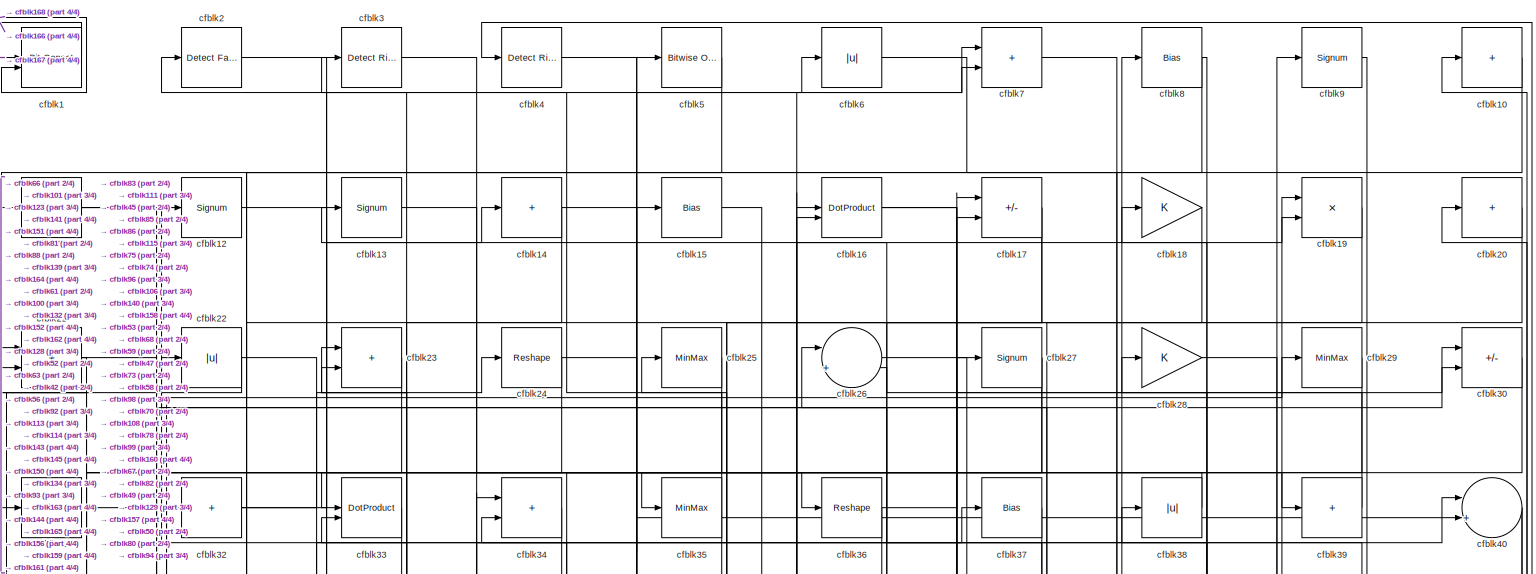
[diagram: root canvas - part 1/4, full width, top band]
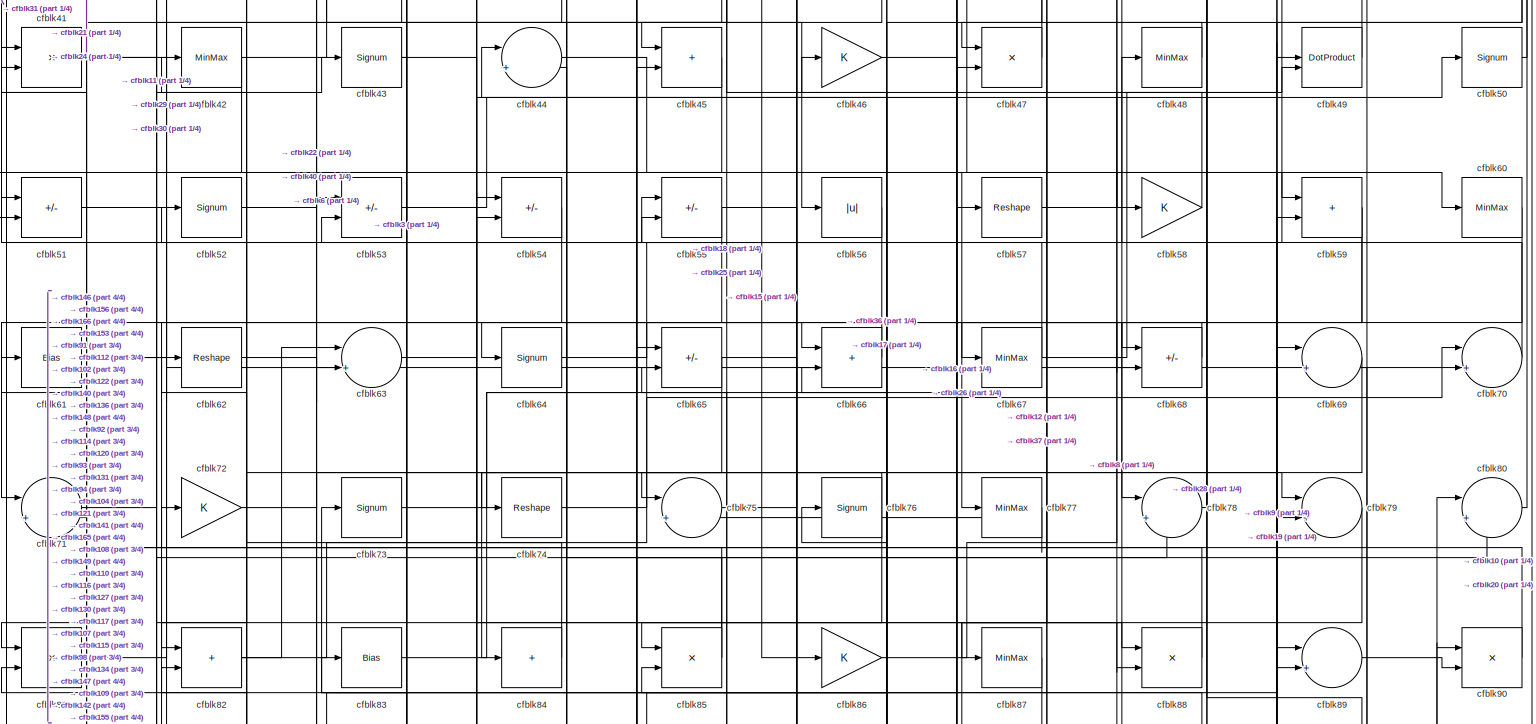
[diagram: root canvas - part 2/4, full width, middle band]
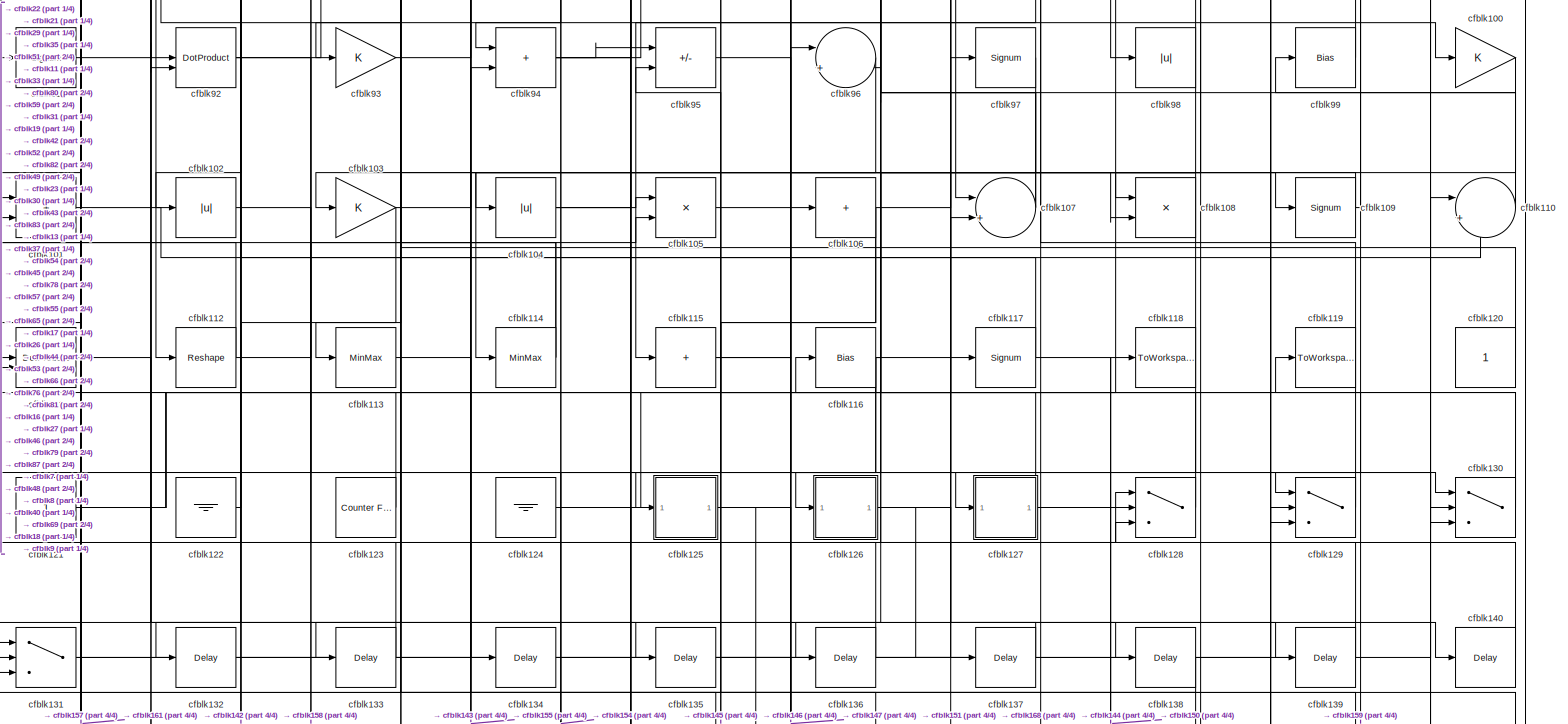
[diagram: root canvas - part 3/4, full width, bottom band]
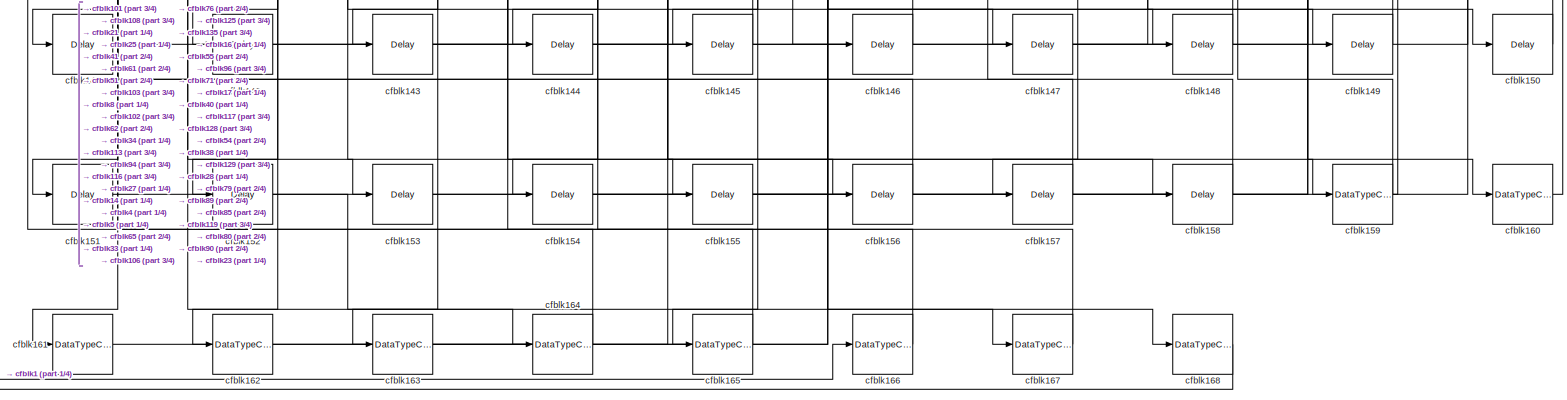
[diagram: root canvas - part 4/4, full width, bottom band]
MODEL slx_8624c88c60cd
KIND model
CONFIG AbsTol = auto
CONFIG EnableMultiTasking = off
CONFIG FixedStep = auto
CONFIG MaxStep = auto
CONFIG MinStep = auto
CONFIG RelTol = 1e-3
CONFIG SampleTimeConstraint = Unconstrained
CONFIG SolverName = VariableStepAuto
CONFIG StartTime = 0.0
CONFIG StopTime = 10.0
BLOCK [Reference] cfblk1  REF=hdlsllib/Logic and Bit
Operations/Bit Concat
  SourceBlock = hdlsllib/Logic and Bit\nOperations/Bit Concat
  SourceType = Bit Concat
BLOCK [Sum] cfblk10
  IconShape = rectangular
  Inputs = +
BLOCK [Gain] cfblk100
BLOCK [Sum] cfblk101
  IconShape = rectangular
BLOCK [Abs] cfblk102
  SaturateOnIntegerOverflow = off
BLOCK [Gain] cfblk103
BLOCK [Abs] cfblk104
  SaturateOnIntegerOverflow = off
BLOCK [Product] cfblk105
  Inputs = */
  RndMeth = Zero
  SaturateOnIntegerOverflow = on
BLOCK [Sum] cfblk106
  IconShape = rectangular
  Inputs = +
BLOCK [Sum] cfblk107
  Inputs = |++
BLOCK [Product] cfblk108
  Inputs = */
  RndMeth = Zero
  SaturateOnIntegerOverflow = on
BLOCK [Signum] cfblk109
BLOCK [MinMax] cfblk11
BLOCK [Sum] cfblk110
  Inputs = |++
BLOCK [DotProduct] cfblk111
  OutDataTypeStr = Inherit: Inherit via internal rule
BLOCK [Reshape] cfblk112
BLOCK [MinMax] cfblk113
BLOCK [MinMax] cfblk114
BLOCK [Sum] cfblk115
  IconShape = rectangular
  Inputs = +
BLOCK [Bias] cfblk116
  Bias = 0.0
  SaturateOnIntegerOverflow = off
BLOCK [Signum] cfblk117
BLOCK [ToWorkspace] cfblk118
  MaxDataPoints = inf
  SampleTime = -1
  SaveFormat = Timeseries
  VariableName = simout
BLOCK [ToWorkspace] cfblk119
  MaxDataPoints = inf
  SampleTime = -1
  SaveFormat = Timeseries
  VariableName = simout
BLOCK [Signum] cfblk12
BLOCK [Constant] cfblk120
  SampleTime = -1
BLOCK [Constant] cfblk121
  SampleTime = -1
BLOCK [Ground] cfblk122
BLOCK [Reference] cfblk123  REF=hdlsllib/Sources/Counter
Free-Running
  SourceBlock = hdlsllib/Sources/Counter\nFree-Running
  SourceType = Counter Free-Running
BLOCK [Ground] cfblk124
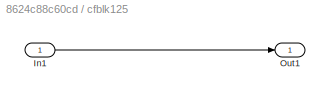
BLOCK [SubSystem] cfblk125
  LibrarySourceBlock = hdlsllib/Ports &\nSubsystems/Subsystem
BLOCK [Inport] cfblk125/In1
BLOCK [Outport] cfblk125/Out1
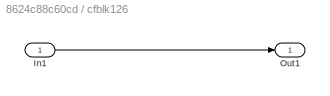
BLOCK [SubSystem] cfblk126
  LibrarySourceBlock = hdlsllib/Ports &\nSubsystems/Subsystem
BLOCK [Inport] cfblk126/In1
BLOCK [Outport] cfblk126/Out1
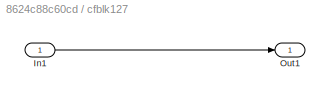
BLOCK [SubSystem] cfblk127
  LibrarySourceBlock = hdlsllib/Ports &\nSubsystems/Subsystem
BLOCK [Inport] cfblk127/In1
BLOCK [Outport] cfblk127/Out1
BLOCK [Switch] cfblk128
  InputSameDT = off
  SaturateOnIntegerOverflow = off
BLOCK [Switch] cfblk129
  InputSameDT = off
  SaturateOnIntegerOverflow = off
BLOCK [Signum] cfblk13
BLOCK [Switch] cfblk130
  InputSameDT = off
  SaturateOnIntegerOverflow = off
BLOCK [Switch] cfblk131
  InputSameDT = off
  SaturateOnIntegerOverflow = off
BLOCK [Delay] cfblk132
  InputPortMap = u0
  SampleTime = 1
BLOCK [Delay] cfblk133
  InputPortMap = u0
  SampleTime = 1
BLOCK [Delay] cfblk134
  InputPortMap = u0
  SampleTime = 1
BLOCK [Delay] cfblk135
  InputPortMap = u0
  SampleTime = 1
BLOCK [Delay] cfblk136
  InputPortMap = u0
  SampleTime = 1
BLOCK [Delay] cfblk137
  InputPortMap = u0
  SampleTime = 1
BLOCK [Delay] cfblk138
  InputPortMap = u0
  SampleTime = 1
BLOCK [Delay] cfblk139
  InputPortMap = u0
  SampleTime = 1
BLOCK [Sum] cfblk14
  IconShape = rectangular
  Inputs = +
BLOCK [Delay] cfblk140
  InputPortMap = u0
  SampleTime = 1
BLOCK [Delay] cfblk141
  InputPortMap = u0
  SampleTime = 1
BLOCK [Delay] cfblk142
  InputPortMap = u0
  SampleTime = 1
BLOCK [Delay] cfblk143
  InputPortMap = u0
  SampleTime = 1
BLOCK [Delay] cfblk144
  InputPortMap = u0
  SampleTime = 1
BLOCK [Delay] cfblk145
  InputPortMap = u0
  SampleTime = 1
BLOCK [Delay] cfblk146
  InputPortMap = u0
  SampleTime = 1
BLOCK [Delay] cfblk147
  InputPortMap = u0
  SampleTime = 1
BLOCK [Delay] cfblk148
  InputPortMap = u0
  SampleTime = 1
BLOCK [Delay] cfblk149
  InputPortMap = u0
  SampleTime = 1
BLOCK [Bias] cfblk15
  Bias = 0.0
  SaturateOnIntegerOverflow = off
BLOCK [Delay] cfblk150
  InputPortMap = u0
  SampleTime = 1
BLOCK [Delay] cfblk151
  InputPortMap = u0
  SampleTime = 1
BLOCK [Delay] cfblk152
  InputPortMap = u0
  SampleTime = 1
BLOCK [Delay] cfblk153
  InputPortMap = u0
  SampleTime = 1
BLOCK [Delay] cfblk154
  InputPortMap = u0
  SampleTime = 1
BLOCK [Delay] cfblk155
  InputPortMap = u0
  SampleTime = 1
BLOCK [Delay] cfblk156
  InputPortMap = u0
  SampleTime = 1
BLOCK [Delay] cfblk157
  InputPortMap = u0
  SampleTime = 1
BLOCK [Delay] cfblk158
  InputPortMap = u0
  SampleTime = 1
BLOCK [DataTypeConversion] cfblk159
  RndMeth = Floor
  SaturateOnIntegerOverflow = off
BLOCK [DotProduct] cfblk16
  OutDataTypeStr = Inherit: Inherit via internal rule
BLOCK [DataTypeConversion] cfblk160
  OutDataTypeStr = uint8
  RndMeth = Floor
  SaturateOnIntegerOverflow = off
BLOCK [DataTypeConversion] cfblk161
  OutDataTypeStr = boolean
  RndMeth = Floor
  SaturateOnIntegerOverflow = off
BLOCK [DataTypeConversion] cfblk162
  OutDataTypeStr = uint8
  RndMeth = Floor
  SaturateOnIntegerOverflow = off
BLOCK [DataTypeConversion] cfblk163
  OutDataTypeStr = uint8
  RndMeth = Floor
  SaturateOnIntegerOverflow = off
BLOCK [DataTypeConversion] cfblk164
  OutDataTypeStr = uint8
  RndMeth = Floor
  SaturateOnIntegerOverflow = off
BLOCK [DataTypeConversion] cfblk165
  OutDataTypeStr = uint8
  RndMeth = Floor
  SaturateOnIntegerOverflow = off
BLOCK [DataTypeConversion] cfblk166
  OutDataTypeStr = uint8
  RndMeth = Floor
  SaturateOnIntegerOverflow = off
BLOCK [DataTypeConversion] cfblk167
  OutDataTypeStr = uint8
  RndMeth = Floor
  SaturateOnIntegerOverflow = off
BLOCK [DataTypeConversion] cfblk168
  OutDataTypeStr = uint8
  RndMeth = Floor
  SaturateOnIntegerOverflow = off
BLOCK [Sum] cfblk17
  IconShape = rectangular
  Inputs = +-
BLOCK [Gain] cfblk18
BLOCK [Product] cfblk19
  Inputs = */
  RndMeth = Zero
  SaturateOnIntegerOverflow = on
BLOCK [Reference] cfblk2  REF=hdlsllib/Logic and Bit
Operations/Detect Fall
Nonpositive
  SourceBlock = hdlsllib/Logic and Bit\nOperations/Detect Fall\nNonpositive
  SourceType = Detect Fall Nonpositive
BLOCK [Sum] cfblk20
  IconShape = rectangular
  Inputs = +
BLOCK [Sum] cfblk21
  IconShape = rectangular
BLOCK [Abs] cfblk22
  SaturateOnIntegerOverflow = off
BLOCK [Sum] cfblk23
  IconShape = rectangular
BLOCK [Reshape] cfblk24
BLOCK [MinMax] cfblk25
BLOCK [Sum] cfblk26
  Inputs = |++
BLOCK [Signum] cfblk27
BLOCK [Gain] cfblk28
BLOCK [MinMax] cfblk29
BLOCK [Reference] cfblk3  REF=hdlsllib/Logic and Bit
Operations/Detect Rise
Positive
  SourceBlock = hdlsllib/Logic and Bit\nOperations/Detect Rise\nPositive
  SourceType = Detect Rise Positive
BLOCK [Sum] cfblk30
  IconShape = rectangular
  Inputs = +-
BLOCK [Bias] cfblk31
  Bias = 0.0
  SaturateOnIntegerOverflow = off
BLOCK [Sum] cfblk32
  IconShape = rectangular
  Inputs = +
BLOCK [DotProduct] cfblk33
  OutDataTypeStr = Inherit: Inherit via internal rule
BLOCK [Sum] cfblk34
  IconShape = rectangular
BLOCK [MinMax] cfblk35
BLOCK [Reshape] cfblk36
BLOCK [Bias] cfblk37
  Bias = 0.0
  SaturateOnIntegerOverflow = off
BLOCK [Abs] cfblk38
  SaturateOnIntegerOverflow = off
BLOCK [Sum] cfblk39
  IconShape = rectangular
  Inputs = +
BLOCK [Reference] cfblk4  REF=hdlsllib/Logic and Bit
Operations/Detect Rise
Positive
  SourceBlock = hdlsllib/Logic and Bit\nOperations/Detect Rise\nPositive
  SourceType = Detect Rise Positive
BLOCK [Sum] cfblk40
  Inputs = |++
BLOCK [Product] cfblk41
  Inputs = */
  RndMeth = Zero
  SaturateOnIntegerOverflow = on
BLOCK [MinMax] cfblk42
BLOCK [Signum] cfblk43
BLOCK [Sum] cfblk44
  Inputs = |++
BLOCK [Sum] cfblk45
  IconShape = rectangular
BLOCK [Gain] cfblk46
BLOCK [Product] cfblk47
  Inputs = */
  RndMeth = Zero
  SaturateOnIntegerOverflow = on
BLOCK [MinMax] cfblk48
BLOCK [DotProduct] cfblk49
  OutDataTypeStr = Inherit: Inherit via internal rule
BLOCK [Reference] cfblk5  REF=simulink/Logic and Bit
Operations/Bitwise
Operator
  LibrarySourceBlock = hdlsllib/Logic and Bit\nOperations/Bitwise\nOperator
  SourceBlock = simulink/Logic and Bit\nOperations/Bitwise\nOperator
  SourceType = Bitwise Operator
BLOCK [Signum] cfblk50
BLOCK [Sum] cfblk51
  IconShape = rectangular
  Inputs = +-
BLOCK [Signum] cfblk52
BLOCK [Sum] cfblk53
  IconShape = rectangular
  Inputs = +-
BLOCK [Sum] cfblk54
  IconShape = rectangular
  Inputs = +-
BLOCK [Sum] cfblk55
  IconShape = rectangular
  Inputs = +-
BLOCK [Abs] cfblk56
  SaturateOnIntegerOverflow = off
BLOCK [Reshape] cfblk57
BLOCK [Gain] cfblk58
BLOCK [Sum] cfblk59
  IconShape = rectangular
BLOCK [Abs] cfblk6
  SaturateOnIntegerOverflow = off
BLOCK [MinMax] cfblk60
BLOCK [Bias] cfblk61
  Bias = 0.0
  SaturateOnIntegerOverflow = off
BLOCK [Reshape] cfblk62
BLOCK [Sum] cfblk63
  Inputs = |++
BLOCK [Signum] cfblk64
BLOCK [Sum] cfblk65
  IconShape = rectangular
  Inputs = +-
BLOCK [Sum] cfblk66
  IconShape = rectangular
BLOCK [MinMax] cfblk67
BLOCK [Sum] cfblk68
  IconShape = rectangular
  Inputs = +-
BLOCK [Sum] cfblk69
  Inputs = |++
BLOCK [Sum] cfblk7
  IconShape = rectangular
BLOCK [Sum] cfblk70
  Inputs = |++
BLOCK [Sum] cfblk71
  Inputs = |++
BLOCK [Gain] cfblk72
BLOCK [Signum] cfblk73
BLOCK [Reshape] cfblk74
BLOCK [Sum] cfblk75
  Inputs = |++
BLOCK [Signum] cfblk76
BLOCK [MinMax] cfblk77
BLOCK [Sum] cfblk78
  Inputs = |++
BLOCK [Sum] cfblk79
  Inputs = |++
BLOCK [Bias] cfblk8
  Bias = 0.0
  SaturateOnIntegerOverflow = off
BLOCK [Sum] cfblk80
  Inputs = |++
BLOCK [Product] cfblk81
  Inputs = */
  RndMeth = Zero
  SaturateOnIntegerOverflow = on
BLOCK [Sum] cfblk82
  IconShape = rectangular
BLOCK [Bias] cfblk83
  Bias = 0.0
  SaturateOnIntegerOverflow = off
BLOCK [Sum] cfblk84
  IconShape = rectangular
  Inputs = +
BLOCK [Product] cfblk85
  Inputs = */
  RndMeth = Zero
  SaturateOnIntegerOverflow = on
BLOCK [Gain] cfblk86
BLOCK [MinMax] cfblk87
BLOCK [Product] cfblk88
  Inputs = */
  RndMeth = Zero
  SaturateOnIntegerOverflow = on
BLOCK [Sum] cfblk89
  Inputs = |++
BLOCK [Signum] cfblk9
BLOCK [Product] cfblk90
  Inputs = */
  RndMeth = Zero
  SaturateOnIntegerOverflow = on
BLOCK [Signum] cfblk91
BLOCK [DotProduct] cfblk92
  OutDataTypeStr = Inherit: Inherit via internal rule
BLOCK [Gain] cfblk93
BLOCK [Sum] cfblk94
  IconShape = rectangular
BLOCK [Sum] cfblk95
  IconShape = rectangular
  Inputs = +-
BLOCK [Sum] cfblk96
  Inputs = |++
BLOCK [Signum] cfblk97
BLOCK [Abs] cfblk98
  SaturateOnIntegerOverflow = off
BLOCK [Bias] cfblk99
  Bias = 0.0
  SaturateOnIntegerOverflow = off
LINE cfblk100:1 -> cfblk136:1
LINE cfblk101:1 -> cfblk110:2
LINE cfblk102:1 -> cfblk158:1
NET cfblk103:1 -> cfblk109:1, cfblk142:1
NET cfblk104:1 -> cfblk105:1, cfblk78:2
LINE cfblk105:1 -> cfblk106:1
NET cfblk106:1 -> cfblk125:1, cfblk145:1, cfblk27:1
NET cfblk107:1 -> cfblk53:2, cfblk81:2
NET cfblk108:1 -> cfblk103:1, cfblk161:1
NET cfblk109:1 -> cfblk104:1, cfblk69:2
LINE cfblk10:1 -> cfblk11:1
NET cfblk110:1 -> cfblk44:1, cfblk99:1
LINE cfblk111:1 -> cfblk135:1
NET cfblk112:1 -> cfblk105:2, cfblk91:1
LINE cfblk113:1 -> cfblk155:1
NET cfblk114:1 -> cfblk23:1, cfblk51:1
NET cfblk115:1 -> cfblk130:1, cfblk7:1
NET cfblk116:1 -> cfblk111:2, cfblk130:2, cfblk131:2, cfblk154:1, cfblk46:1
NET cfblk117:1 -> cfblk150:1, cfblk42:1
NET cfblk11:1 -> cfblk139:1, cfblk88:1
LINE cfblk120:1 -> cfblk83:1
NET cfblk121:1 -> cfblk45:2, cfblk48:1, cfblk69:1
LINE cfblk122:1 -> cfblk52:1
LINE cfblk123:1 -> cfblk21:2
NET cfblk124:1 -> cfblk107:2, cfblk128:3
LINE cfblk125/In1:1 -> cfblk125/Out1:1
NET cfblk125:1 -> cfblk146:1, cfblk147:1
LINE cfblk126/In1:1 -> cfblk126/Out1:1
NET cfblk126:1 -> cfblk137:1, cfblk138:1
LINE cfblk127/In1:1 -> cfblk127/Out1:1
NET cfblk127:1 -> cfblk118:1, cfblk66:2
LINE cfblk128:1 -> cfblk116:1
LINE cfblk129:1 -> cfblk22:1
LINE cfblk12:1 -> cfblk56:1
NET cfblk130:1 -> cfblk76:1, cfblk95:2
NET cfblk131:1 -> cfblk54:2, cfblk97:1
LINE cfblk132:1 -> cfblk110:1
LINE cfblk133:1 -> cfblk92:1
LINE cfblk134:1 -> cfblk59:2
LINE cfblk135:1 -> cfblk168:1
LINE cfblk136:1 -> cfblk53:1
LINE cfblk137:1 -> cfblk131:1
LINE cfblk138:1 -> cfblk131:3
LINE cfblk139:1 -> cfblk26:1
LINE cfblk13:1 -> cfblk134:1
LINE cfblk140:1 -> cfblk82:2
LINE cfblk141:1 -> cfblk65:1
LINE cfblk142:1 -> cfblk80:1
LINE cfblk143:1 -> cfblk94:2
LINE cfblk144:1 -> cfblk128:2
LINE cfblk145:1 -> cfblk33:2
LINE cfblk146:1 -> cfblk71:2
LINE cfblk147:1 -> cfblk89:2
LINE cfblk148:1 -> cfblk54:1
LINE cfblk149:1 -> cfblk85:2
NET cfblk14:1 -> cfblk156:1, cfblk33:1
LINE cfblk150:1 -> cfblk23:2
LINE cfblk151:1 -> cfblk96:1
LINE cfblk152:1 -> cfblk167:1
LINE cfblk153:1 -> cfblk79:2
LINE cfblk154:1 -> cfblk129:2
LINE cfblk155:1 -> cfblk90:1
LINE cfblk156:1 -> cfblk41:2
LINE cfblk157:1 -> cfblk101:2
LINE cfblk158:1 -> cfblk17:1
NET cfblk159:1 -> cfblk119:1, cfblk38:1
LINE cfblk15:1 -> cfblk86:1
LINE cfblk160:1 -> cfblk4:1
LINE cfblk161:1 -> cfblk5:1
LINE cfblk162:1 -> cfblk16:1
LINE cfblk163:1 -> cfblk16:2
LINE cfblk164:1 -> cfblk34:1
LINE cfblk165:1 -> cfblk34:2
LINE cfblk166:1 -> cfblk61:1
LINE cfblk167:1 -> cfblk1:1
LINE cfblk168:1 -> cfblk1:2
NET cfblk16:1 -> cfblk140:1, cfblk68:1
NET cfblk17:1 -> cfblk45:1, cfblk96:2
LINE cfblk18:1 -> cfblk85:1
LINE cfblk19:1 -> cfblk132:1
LINE cfblk1:1 -> cfblk166:1
LINE cfblk20:1 -> cfblk67:1
NET cfblk21:1 -> cfblk141:1, cfblk164:1
NET cfblk22:1 -> cfblk128:1, cfblk63:2
LINE cfblk23:1 -> cfblk32:1
NET cfblk24:1 -> cfblk40:2, cfblk81:1
LINE cfblk25:1 -> cfblk151:1
LINE cfblk26:1 -> cfblk59:1
NET cfblk27:1 -> cfblk143:1, cfblk144:1
LINE cfblk28:1 -> cfblk160:1
LINE cfblk29:1 -> cfblk101:1
LINE cfblk2:1 -> cfblk39:1
LINE cfblk30:1 -> cfblk113:1
LINE cfblk31:1 -> cfblk100:1
NET cfblk32:1 -> cfblk14:1, cfblk24:1
LINE cfblk33:1 -> cfblk92:2
LINE cfblk34:1 -> cfblk163:1
NET cfblk35:1 -> cfblk111:1, cfblk2:1
NET cfblk36:1 -> cfblk30:1, cfblk74:1
LINE cfblk37:1 -> cfblk73:1
LINE cfblk38:1 -> cfblk35:1
LINE cfblk39:1 -> cfblk13:1
LINE cfblk3:1 -> cfblk36:1
NET cfblk40:1 -> cfblk129:3, cfblk157:1
NET cfblk41:1 -> cfblk68:2, cfblk89:1
NET cfblk42:1 -> cfblk51:2, cfblk6:1
NET cfblk43:1 -> cfblk88:2, cfblk93:1
LINE cfblk44:1 -> cfblk77:1
LINE cfblk45:1 -> cfblk102:1
LINE cfblk46:1 -> cfblk117:1
LINE cfblk47:1 -> cfblk12:1
LINE cfblk48:1 -> cfblk47:1
LINE cfblk49:1 -> cfblk26:2
LINE cfblk4:1 -> cfblk159:1
LINE cfblk50:1 -> cfblk10:1
NET cfblk51:1 -> cfblk153:1, cfblk70:2
LINE cfblk52:1 -> cfblk40:1
LINE cfblk53:1 -> cfblk17:2
LINE cfblk54:1 -> cfblk71:1
NET cfblk55:1 -> cfblk149:1, cfblk94:1
LINE cfblk56:1 -> cfblk55:2
LINE cfblk57:1 -> cfblk60:1
LINE cfblk58:1 -> cfblk25:1
NET cfblk59:1 -> cfblk112:1, cfblk87:1
LINE cfblk5:1 -> cfblk162:1
LINE cfblk60:1 -> cfblk78:1
NET cfblk61:1 -> cfblk29:1, cfblk30:2
LINE cfblk62:1 -> cfblk148:1
LINE cfblk63:1 -> cfblk50:1
LINE cfblk64:1 -> cfblk66:1
NET cfblk65:1 -> cfblk108:2, cfblk82:1
LINE cfblk66:1 -> cfblk31:1
NET cfblk67:1 -> cfblk3:1, cfblk9:1
LINE cfblk68:1 -> cfblk64:1
LINE cfblk69:1 -> cfblk84:1
LINE cfblk6:1 -> cfblk58:1
LINE cfblk70:1 -> cfblk8:1
LINE cfblk71:1 -> cfblk43:1
LINE cfblk72:1 -> cfblk79:1
LINE cfblk73:1 -> cfblk47:2
LINE cfblk74:1 -> cfblk70:1
LINE cfblk75:1 -> cfblk19:2
NET cfblk76:1 -> cfblk165:1, cfblk75:1
LINE cfblk77:1 -> cfblk75:2
LINE cfblk78:1 -> cfblk28:1
LINE cfblk79:1 -> cfblk107:1
LINE cfblk7:1 -> cfblk98:1
LINE cfblk80:1 -> cfblk20:1
LINE cfblk81:1 -> cfblk55:1
NET cfblk82:1 -> cfblk19:1, cfblk63:1
LINE cfblk83:1 -> cfblk15:1
LINE cfblk84:1 -> cfblk62:1
NET cfblk85:1 -> cfblk41:1, cfblk44:2
LINE cfblk86:1 -> cfblk49:2
LINE cfblk87:1 -> cfblk115:1
LINE cfblk88:1 -> cfblk21:1
LINE cfblk89:1 -> cfblk90:2
NET cfblk8:1 -> cfblk108:1, cfblk152:1
LINE cfblk90:1 -> cfblk72:1
LINE cfblk91:1 -> cfblk80:2
NET cfblk92:1 -> cfblk130:3, cfblk49:1
LINE cfblk93:1 -> cfblk37:1
NET cfblk94:1 -> cfblk57:1, cfblk7:2, cfblk95:1
LINE cfblk95:1 -> cfblk127:1
LINE cfblk96:1 -> cfblk114:1
LINE cfblk97:1 -> cfblk133:1
NET cfblk98:1 -> cfblk126:1, cfblk65:2
LINE cfblk99:1 -> cfblk18:1
LINE cfblk9:1 -> cfblk129:1
note: NET lines group one-source signal fan-out (src -> all destinations, sorted); 1:1 wires keep LINE
